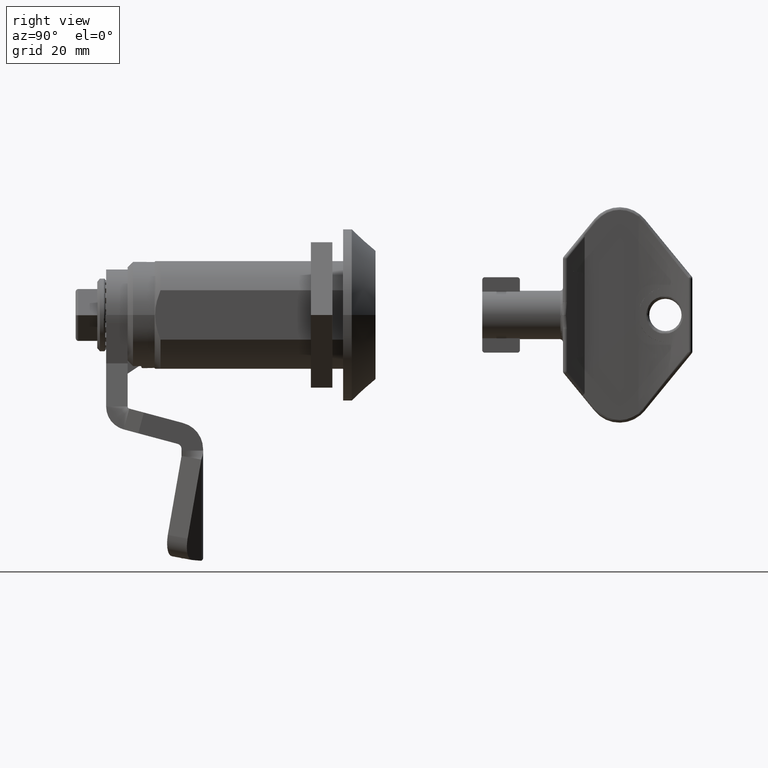
[diagram: clean part render]
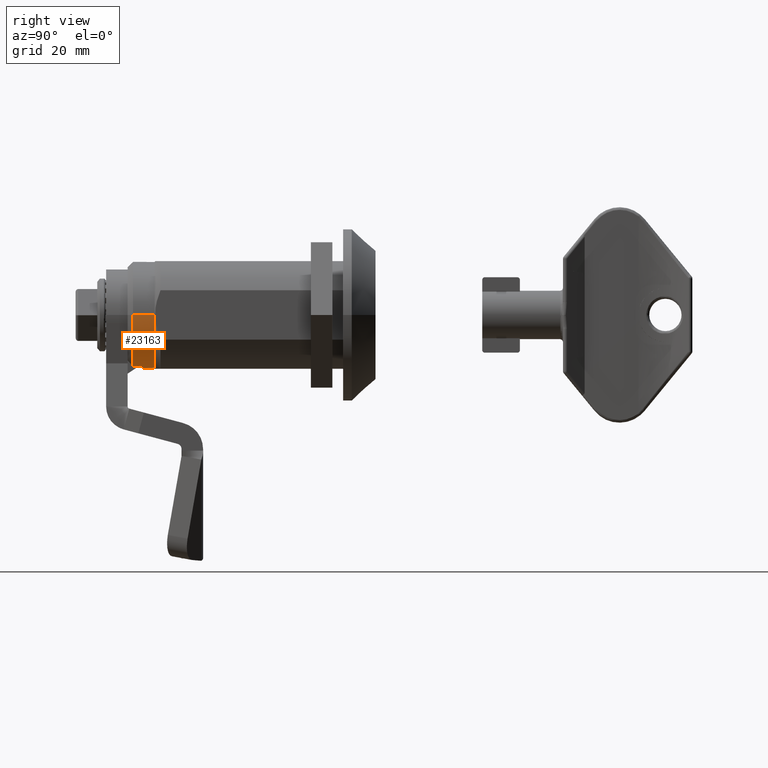
[diagram: same view with one face highlighted and labeled with its STEP entity id]
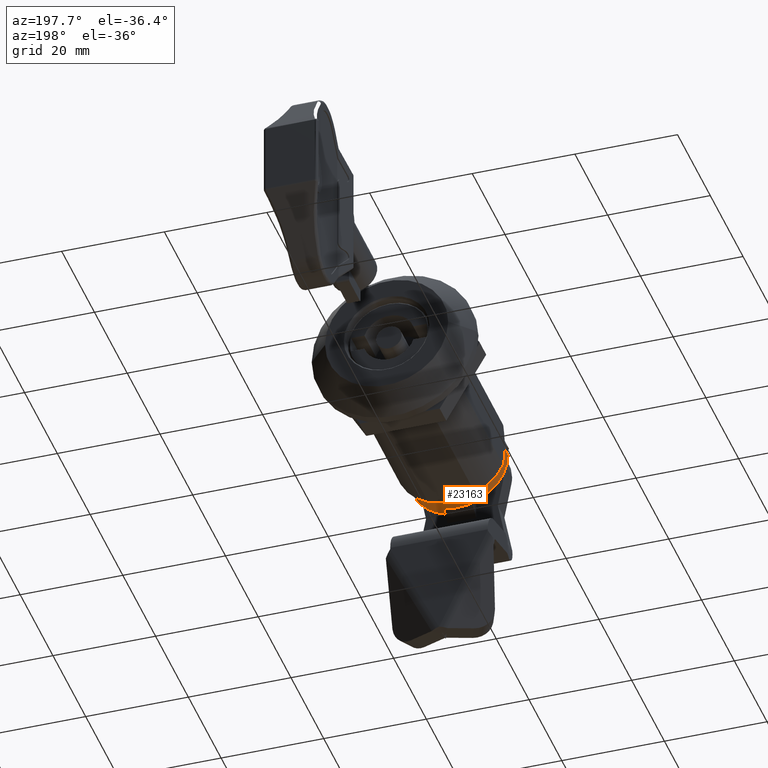
[diagram: same view with one face highlighted and labeled with its STEP entity id]
A machine part, right view. The second image highlights one B-rep face of the part: STEP entity #23163.
A second angle (auxiliary view) of the same face is appended — the face is thin or edge-on in the first view.
In plain terms, the highlighted cylindrical surface (partial cylindrical patch) has radius 9.9 mm, axis along (-0, -1, -0).
Its self-contained STEP definition (entity closure, byte-faithful):
#1008 = CARTESIAN_POINT ( 'NONE',  ( 12.79383272429490681, 12.64999999999996128, -7.995788540189428417 ) ) ;
#1831 = EDGE_CURVE ( 'NONE', #17718, #13123, #13626, .T. ) ;
#2457 = CARTESIAN_POINT ( 'NONE',  ( 9.993832724293659098, 14.64999999999998970, 1.499999999999996447 ) ) ;
#2755 = AXIS2_PLACEMENT_3D ( 'NONE', #5557, #16428, #13867 ) ;
#2788 = VERTEX_POINT ( 'NONE', #8471 ) ;
#3002 = CARTESIAN_POINT ( 'NONE',  ( 19.89383272429365945, 10.64999999999998259, 1.499999999999998668 ) ) ;
#3188 = CARTESIAN_POINT ( 'NONE',  ( 0.09383272429365832612, 14.64999999999999147, 1.499999999999993117 ) ) ;
#3257 = CARTESIAN_POINT ( 'NONE',  ( 19.89383272429365945, 14.64999999999998614, 1.500000000000000000 ) ) ;
#3477 = DIRECTION ( 'NONE',  ( -3.317293887944518980E-16, -1.000000000000000000, -1.941967155733531827E-16 ) ) ;
#3752 = DIRECTION ( 'NONE',  ( -3.504491870660216855E-16, -3.504491870660216855E-16, 1.000000000000000000 ) ) ;
#4223 = EDGE_LOOP ( 'NONE', ( #9383, #18853, #15258, #25652, #24856, #7800 ) ) ;
#4612 = VECTOR ( 'NONE', #17416, 1000.000000000000000 ) ;
#5318 = CARTESIAN_POINT ( 'NONE',  ( 12.79383272429424068, 10.65000000000001279, -7.995788540189677995 ) ) ;
#5557 = CARTESIAN_POINT ( 'NONE',  ( 9.993832724293659098, 14.64999999999998970, 1.499999999999996447 ) ) ;
#6210 = VERTEX_POINT ( 'NONE', #3257 ) ;
#6680 = LINE ( 'NONE', #14867, #20739 ) ;
#7800 = ORIENTED_EDGE ( 'NONE', *, *, #16786, .F. ) ;
#8471 = CARTESIAN_POINT ( 'NONE',  ( 0.09383272429365832612, 14.64999999999999325, 1.499999999999991784 ) ) ;
#8507 = AXIS2_PLACEMENT_3D ( 'NONE', #12758, #26500, #25159 ) ;
#8521 = FACE_OUTER_BOUND ( 'NONE', #4223, .T. ) ;
#8957 = DIRECTION ( 'NONE',  ( -2.441170920279464643E-16, -1.000000000000000000, -1.941967155733531581E-16 ) ) ;
#9383 = ORIENTED_EDGE ( 'NONE', *, *, #19346, .F. ) ;
#10522 = CYLINDRICAL_SURFACE ( 'NONE', #16421, 9.900000000000000355 ) ;
#11442 = VECTOR ( 'NONE', #25657, 1000.000000000000000 ) ;
#12758 = CARTESIAN_POINT ( 'NONE',  ( 9.993832724293657321, 10.64999999999998614, 1.499999999999995559 ) ) ;
#12825 = EDGE_CURVE ( 'NONE', #6210, #13123, #6680, .T. ) ;
#13123 = VERTEX_POINT ( 'NONE', #3002 ) ;
#13626 = CIRCLE ( 'NONE', #8507, 9.899999999999998579 ) ;
#13867 = DIRECTION ( 'NONE',  ( -3.504491870660216855E-16, -3.504491870660216855E-16, 1.000000000000000000 ) ) ;
#14867 = CARTESIAN_POINT ( 'NONE',  ( 19.89383272429365945, 14.64999999999998792, 1.499999999999998446 ) ) ;
#15258 = ORIENTED_EDGE ( 'NONE', *, *, #1831, .F. ) ;
#15789 = EDGE_CURVE ( 'NONE', #21694, #17718, #24154, .T. ) ;
#16421 = AXIS2_PLACEMENT_3D ( 'NONE', #2457, #24809, #23180 ) ;
#16428 = DIRECTION ( 'NONE',  ( 3.317293887944518980E-16, 1.000000000000000000, 1.941967155733531827E-16 ) ) ;
#16786 = EDGE_CURVE ( 'NONE', #2788, #20441, #18211, .T. ) ;
#17170 = CARTESIAN_POINT ( 'NONE',  ( 12.79383272429424068, 12.44999999999996021, -7.995788540189539439 ) ) ;
#17416 = DIRECTION ( 'NONE',  ( -3.317293887944518980E-16, -1.000000000000000000, -1.941967155733531827E-16 ) ) ;
#17718 = VERTEX_POINT ( 'NONE', #5318 ) ;
#18211 = LINE ( 'NONE', #3188, #11442 ) ;
#18631 = AXIS2_PLACEMENT_3D ( 'NONE', #22176, #3477, #3752 ) ;
#18853 = ORIENTED_EDGE ( 'NONE', *, *, #12825, .T. ) ;
#19346 = EDGE_CURVE ( 'NONE', #6210, #2788, #24680, .T. ) ;
#20441 = VERTEX_POINT ( 'NONE', #22509 ) ;
#20739 = VECTOR ( 'NONE', #8957, 1000.000000000000000 ) ;
#21630 = CIRCLE ( 'NONE', #18631, 9.899999999999998579 ) ;
#21694 = VERTEX_POINT ( 'NONE', #17170 ) ;
#22176 = CARTESIAN_POINT ( 'NONE',  ( 9.993832724293657321, 12.44999999999998863, 1.499999999999996003 ) ) ;
#22509 = CARTESIAN_POINT ( 'NONE',  ( 0.09383272429365659140, 12.44999999999999218, 1.499999999999992673 ) ) ;
#23163 = ADVANCED_FACE ( 'NONE', ( #8521 ), #10522, .T. ) ;
#23180 = DIRECTION ( 'NONE',  ( -1.000000000000000000, 1.752245935330108181E-16, -3.285461128743952532E-16 ) ) ;
#24154 = LINE ( 'NONE', #1008, #4612 ) ;
#24680 = CIRCLE ( 'NONE', #2755, 9.899999999999998579 ) ;
#24694 = EDGE_CURVE ( 'NONE', #20441, #21694, #21630, .T. ) ;
#24809 = DIRECTION ( 'NONE',  ( -2.441170920279464643E-16, -1.000000000000000000, -1.941967155733531581E-16 ) ) ;
#24856 = ORIENTED_EDGE ( 'NONE', *, *, #24694, .F. ) ;
#25159 = DIRECTION ( 'NONE',  ( -3.504491870660216855E-16, 0.0000000000000000000, 1.000000000000000000 ) ) ;
#25652 = ORIENTED_EDGE ( 'NONE', *, *, #15789, .F. ) ;
#25657 = DIRECTION ( 'NONE',  ( -2.441170920279464643E-16, -1.000000000000000000, -1.941967155733531581E-16 ) ) ;
#26500 = DIRECTION ( 'NONE',  ( -3.317293887944518980E-16, -1.000000000000000000, -1.941967155733531827E-16 ) ) ;